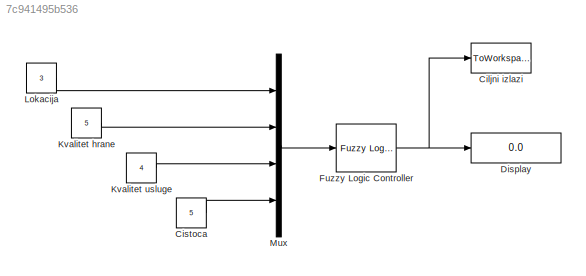
MODEL slx_7c941495b536
KIND model
CONFIG AbsTol = auto
CONFIG EnableMultiTasking = on
CONFIG FixedStep = auto
CONFIG MaxStep = auto
CONFIG MinStep = auto
CONFIG RelTol = 1e-3
CONFIG SampleTimeConstraint = Unconstrained
CONFIG Solver = ode45
CONFIG SolverName = ode45
CONFIG StartTime = 0.0
CONFIG StopTime = 1
BLOCK [ToWorkspace] Ciljni izlazi
  MaxDataPoints = inf
  Ports = [1]
  SampleTime = -1
  VariableName = T
BLOCK [Constant] Cistoca
  Value = 5
BLOCK [Display] Display
  Decimation = 1
  Ports = [1]
BLOCK [Reference] Fuzzy Logic  Controller  REF=fuzblock/Fuzzy Logic   (lib defined in mdl_858b3b3e7478)
Controller
  Ports = [1, 1]
  SourceBlock = fuzblock/Fuzzy Logic \nController
  SourceProductBaseCode = FL
  SourceType = Fuzzy Inference System
BLOCK [Constant] Kvalitet hrane
  Value = 5
BLOCK [Constant] Kvalitet usluge
  Value = 4
BLOCK [Constant] Lokacija
  Value = 3
BLOCK [Mux] Mux
  DisplayOption = bar
  Ports = [4, 1]
LINE Cistoca:1 -> Mux:4
NET Fuzzy Logic  Controller:1 -> Ciljni izlazi:1, Display:1
LINE Kvalitet hrane:1 -> Mux:2
LINE Kvalitet usluge:1 -> Mux:3
LINE Lokacija:1 -> Mux:1
LINE Mux:1 -> Fuzzy Logic  Controller:1
note: NET lines group one-source signal fan-out (src -> all destinations, sorted); 1:1 wires keep LINE
